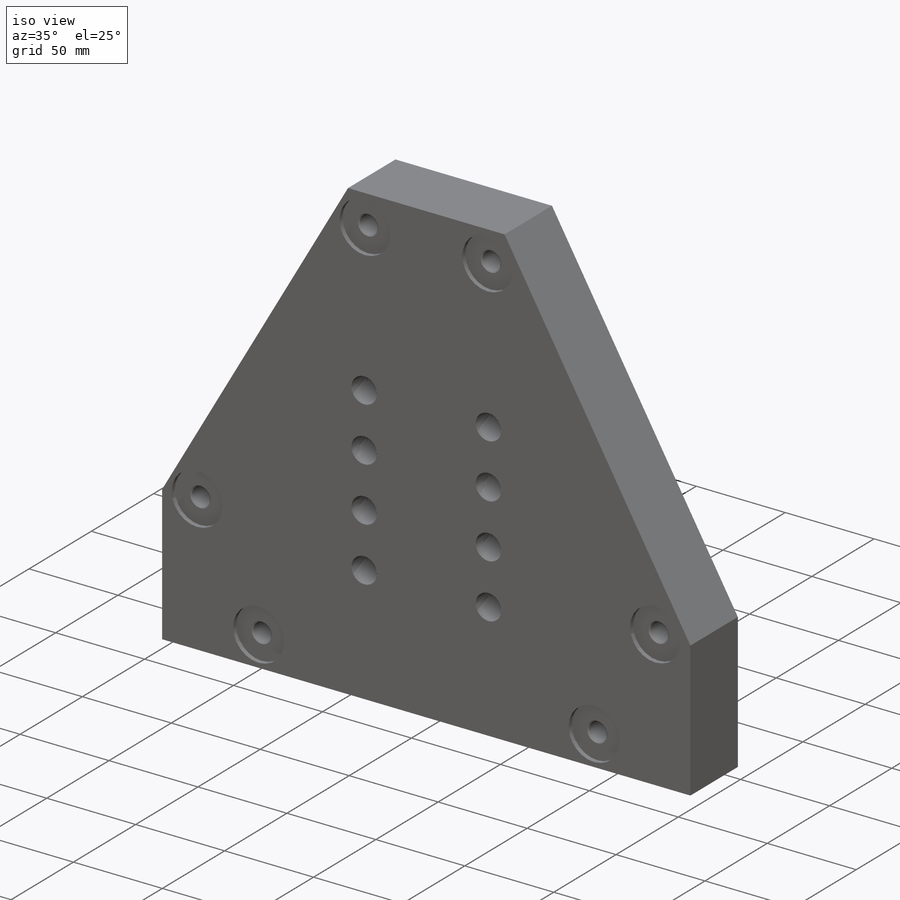
[diagram: iso view]
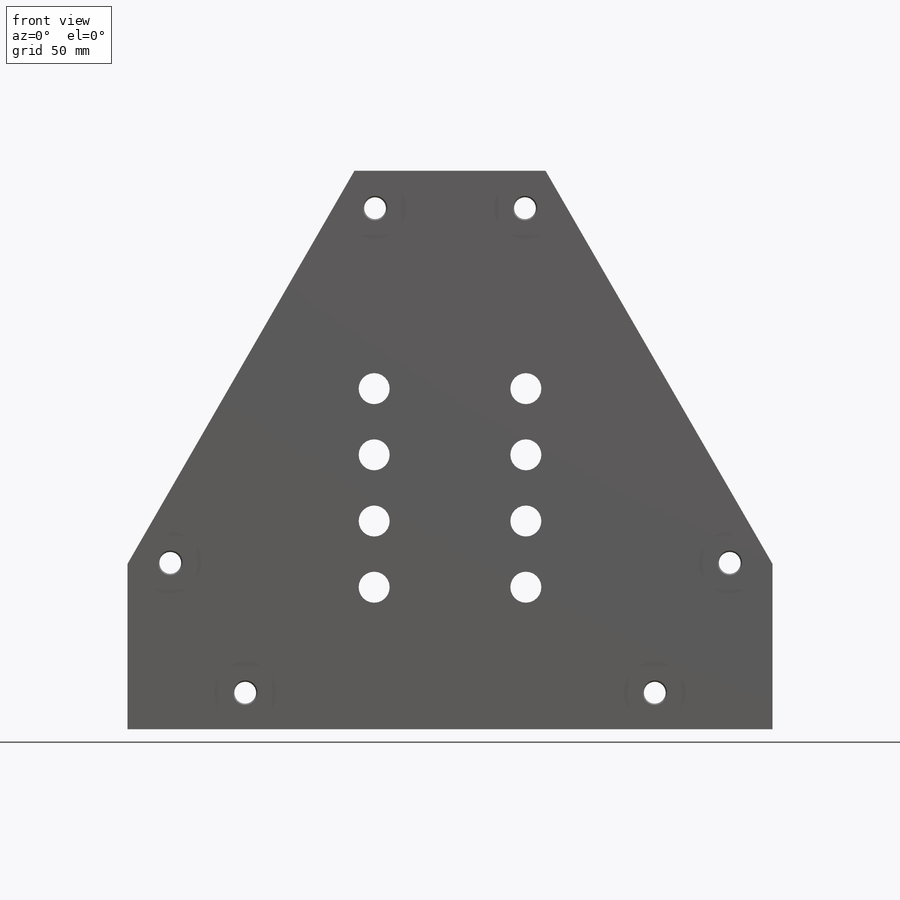
[diagram: front view]
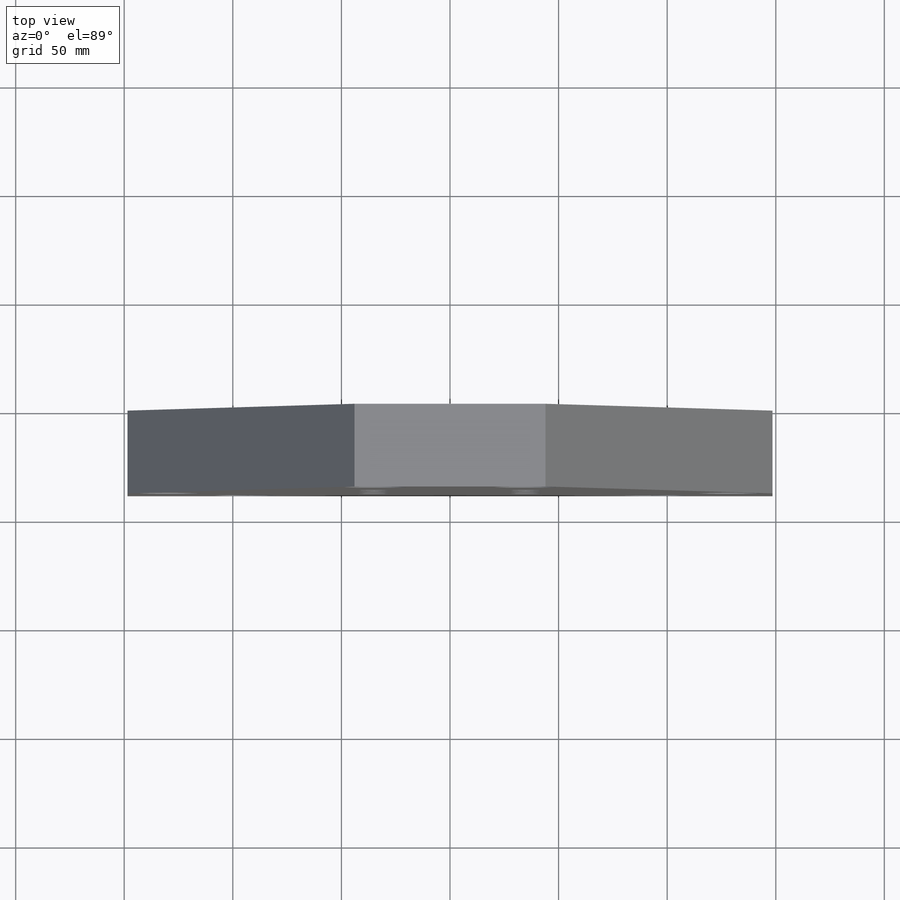
[diagram: top view]
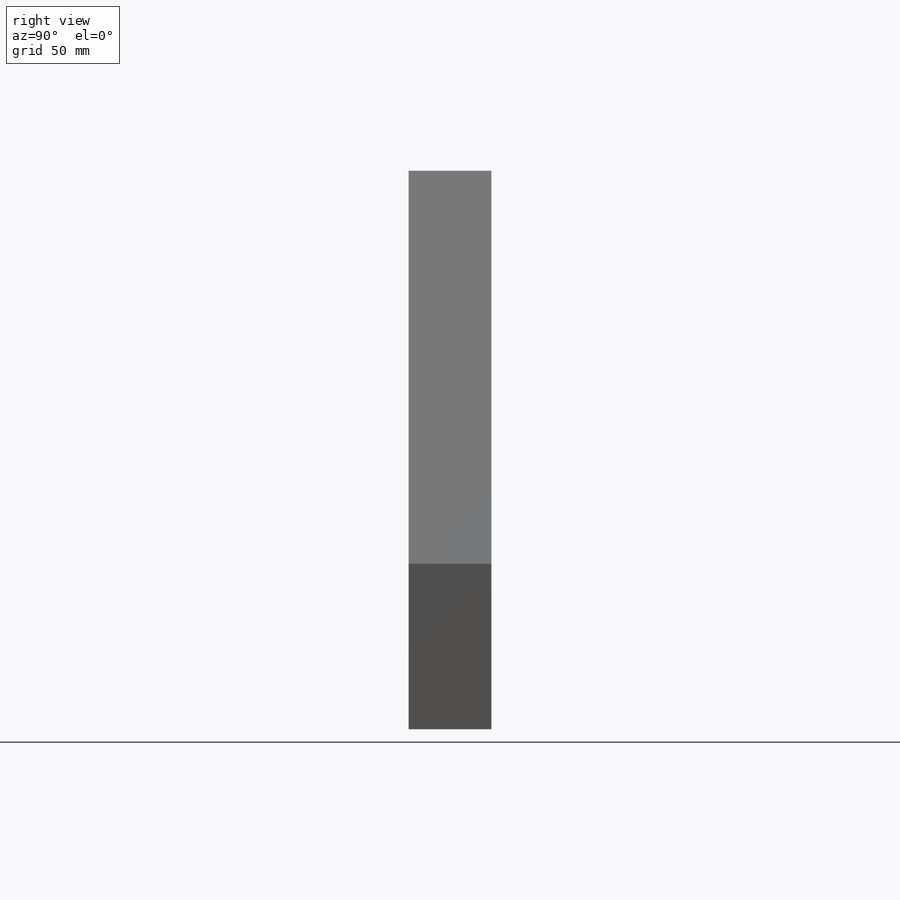
[diagram: right view]
SOLIDWORKS PART (.sldprt)
format: sldprt  version: not decoded by parser v0  size: 453,120 bytes
history: native  units: mm
features: sketch x5, material x3, hole x2, plane x1, extrude x1, pattern_circular x1 + 1 further entry (+76 scaffold rows collapsed)
feature tree (90):
  scaffold x76  (default folders/planes/origin — collapsed)
  material  "304 SSTL"
  material  "ID"
  plane  "XY"
  "Origin"  ID=1018567780.0
  sketch  "Sketch1"  dims[c1.D4=17.4752mm c1.D5=~16.27124mm c1.D6=~16.27124mm c1.D7=~16.27124mm c1.D1=14.2748mm c2.D4=304.8mm c2.D1=~95.487253mm c3.D1=60.0deg c4.D1=252.5014mm c4.D2=84.1756mm c5.D1=~35.773751mm c6.D1=120.0deg c6.D2=~35.773751mm c7.D2=120.0deg c7.D3=~79.569355mm c7.D5=44.45mm c7.D6=44.45mm c7.D7=~137.818165mm c8.D2=292.1mm c8.D3=292.1mm c9.D2=111.125mm c9.D3=146.05mm]
  extrude  "Extrude1"  Depth=38.1mm
  hole  "CBORE for 1/2 Socket Head Cap Screw1"  Diameter=14.2748mm Depth=38.1mm
  sketch  "Sketch6"  dims[D1=45.72mm D2=91.44mm D3=69.85mm D4=34.925mm D5=30.48mm D6=30.48mm]
  sketch  "Sketch5"  dims[hole-wizard template sketch: 41 standard entries collapsed; hole parameters kept: c12.Thru Hole Dia.=14.2748mm c12.Thru Hole Depth=38.1mm c12.C'Bore Dia.=25.4mm c12.C'Bore Depth=14.478mm]
  hole  "CBORE for 3/8 Socket Head Cap Screw1"  Diameter=10.0838mm Depth=38.1mm
  sketch  "Sketch8"  dims[c1.D1=114.3mm c1.D2=114.3mm c2.D1=~117.578802mm c3.D1=30.0deg c3.D2=~92.614495mm c4.D2=15.0deg c4.D3=133.35mm]
  sketch  "Sketch7"  dims[hole-wizard template sketch: 42 standard entries collapsed; hole parameters kept: c12.Thru Hole Depth=38.1mm c12.C'Bore Dia.=28.575mm c12.C'Bore Depth=2.54mm c12.Mid C'Sink Dia.=11.3538mm c12.D6=~5.388154mm c12.Mid C'Sink Angle=90.0deg]
  pattern_circular  "CirPattern1"  Count=3 Angle=120deg
  material  "faceID"  cosFaceIDTag=0
decode coverage: 9 of 9 modeling features carry decoded parameters; 1 rows unclassified (native names shown)
note: ~ marks probable driven/reference dimensions
note: suppression state not decoded; provenance and decode notes live in map.json
